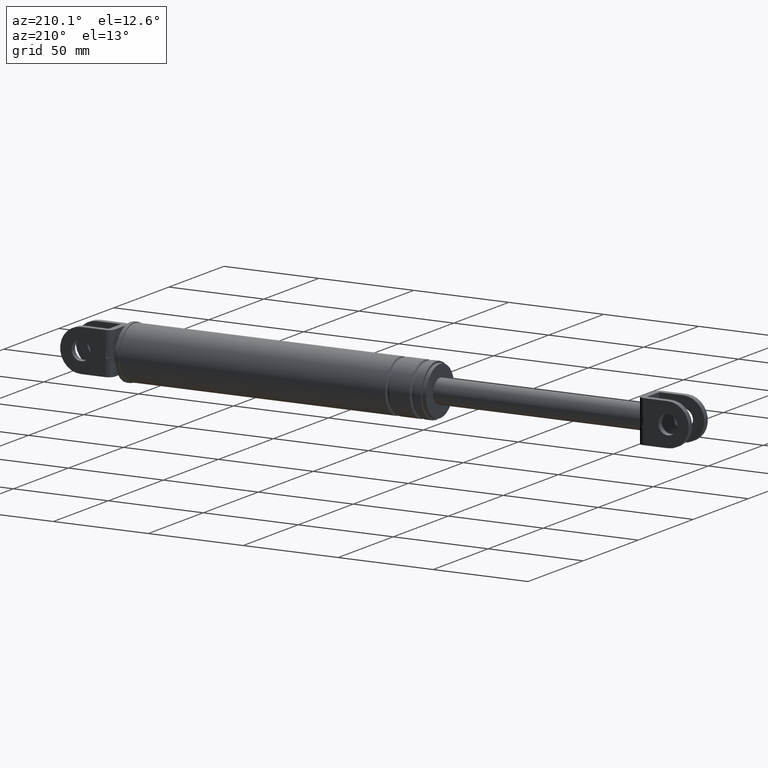
[diagram: clean part render]
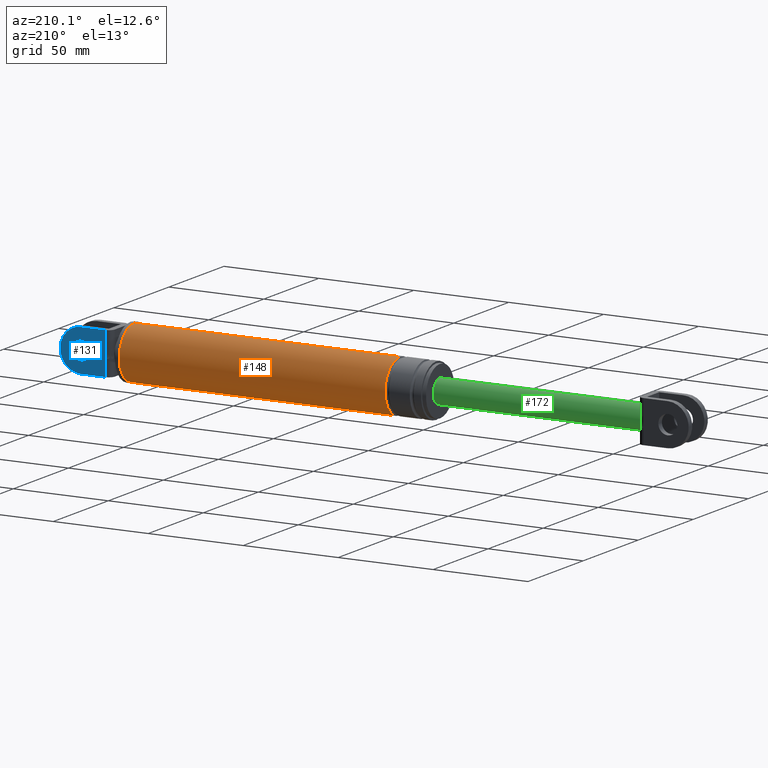
[diagram: same view with three faces highlighted in distinct colors, each labeled with its STEP entity id]
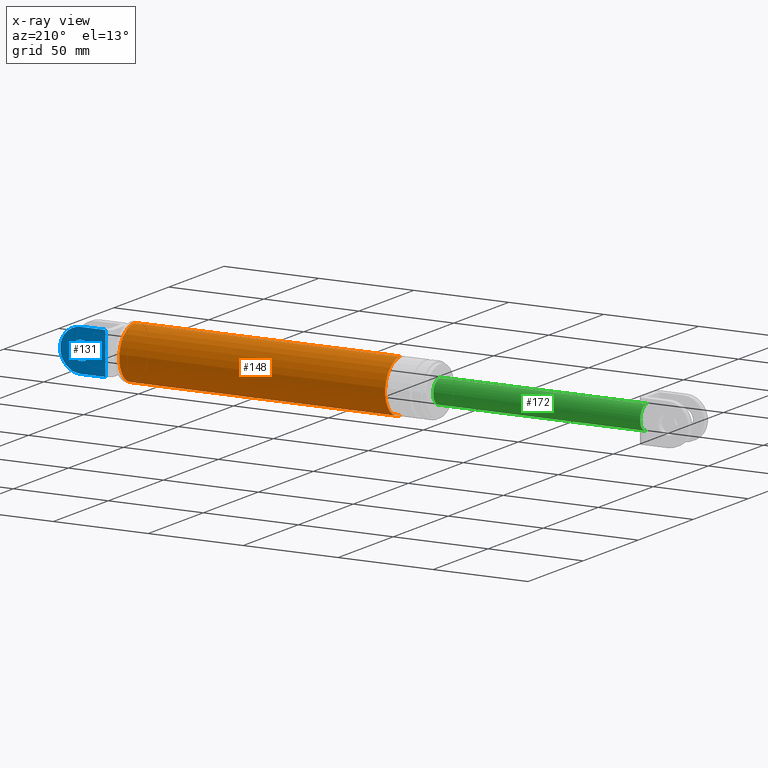
[diagram: x-ray of the same camera — body ghosted, the three highlighted faces saturated]
A machine part, auxiliary view with three faces highlighted in distinct colors.
The next image is the same camera in x-ray (body ghosted, the three faces saturated) — at least one of them is partly hidden behind the body in this view.
Their STEP definitions:

[orange] entity #148 — the highlighted cylindrical surface (edge-blend (fillet) strip) has radius 13.7 mm, axis along (1, 0, 0).
#148=ADVANCED_FACE('',(#543),#542,.T.);
#542=CYLINDRICAL_SURFACE('',#1203,1.37000000000E+001);
#543=FACE_OUTER_BOUND('',#1204,.T.);
#1200=CARTESIAN_POINT('',(0.00000000000E+000,0.00000000000E+000,1.79444335058E+002));
#1201=DIRECTION('',(1.00000000000E+000,-0.00000000000E+000,-0.00000000000E+000));
#1202=DIRECTION('',(-0.00000000000E+000,-0.00000000000E+000,-1.00000000000E+000));
#1203=AXIS2_PLACEMENT_3D('',#1200,#1201,#1202);
#1204=EDGE_LOOP('',(#1568,#1569,#1570,#1571));
#1568=ORIENTED_EDGE('',*,*,#1769,.T.);
#1569=ORIENTED_EDGE('',*,*,#1798,.F.);
#1570=ORIENTED_EDGE('',*,*,#1786,.F.);
#1571=ORIENTED_EDGE('',*,*,#1799,.T.);
#1769=EDGE_CURVE('',#2269,#2268,#2276,.T.);
#1786=EDGE_CURVE('',#2384,#2385,#2386,.T.);
#1798=EDGE_CURVE('',#2385,#2268,#2462,.T.);
#1799=EDGE_CURVE('',#2384,#2269,#2468,.T.);
#2268=VERTEX_POINT('',#3168);
#2269=VERTEX_POINT('',#3169);
#2276=CIRCLE('',#3177,1.37000000000E+001);
#2384=VERTEX_POINT('',#3236);
#2385=VERTEX_POINT('',#3237);
#2386=CIRCLE('',#3241,1.37000000000E+001);
#2462=(BOUNDED_CURVE() B_SPLINE_CURVE(1,(#3286,#3287),.UNSPECIFIED.,.F.,.F.) B_SPLINE_CURVE_WITH_KNOTS((2,2),(6.25000001860E-002,9.37500000071E-001),.UNSPECIFIED.) CURVE() GEOMETRIC_REPRESENTATION_ITEM() RATIONAL_B_SPLINE_CURVE((1.00000000000E+000,1.00000000000E+000)) REPRESENTATION_ITEM('') );
#2468=(BOUNDED_CURVE() B_SPLINE_CURVE(1,(#3288,#3289),.UNSPECIFIED.,.F.,.F.) B_SPLINE_CURVE_WITH_KNOTS((2,2),(6.25000000000E-002,9.37500000000E-001),.UNSPECIFIED.) CURVE() GEOMETRIC_REPRESENTATION_ITEM() RATIONAL_B_SPLINE_CURVE((7.50000000000E-001,7.50000000000E-001)) REPRESENTATION_ITEM('') );
#3168=CARTESIAN_POINT('',(3.52275196154E+002,0.00000000000E+000,1.65744335058E+002));
#3169=CARTESIAN_POINT('',(3.52275196154E+002,0.00000000000E+000,1.93144335058E+002));
#3174=CARTESIAN_POINT('',(3.52275196154E+002,0.00000000000E+000,1.79444335058E+002));
#3175=DIRECTION('',(-1.00000000000E+000,0.00000000000E+000,0.00000000000E+000));
#3176=DIRECTION('',(0.00000000000E+000,-1.22460635382E-016,1.00000000000E+000));
#3177=AXIS2_PLACEMENT_3D('',#3174,#3175,#3176);
#3236=CARTESIAN_POINT('',(2.12275196154E+002,0.00000000000E+000,1.93144335058E+002));
#3237=CARTESIAN_POINT('',(2.12275196154E+002,0.00000000000E+000,1.65744335058E+002));
#3238=CARTESIAN_POINT('',(2.12275196154E+002,0.00000000000E+000,1.79444335058E+002));
#3239=DIRECTION('',(-1.00000000000E+000,0.00000000000E+000,0.00000000000E+000));
#3240=DIRECTION('',(0.00000000000E+000,-1.22460635382E-016,1.00000000000E+000));
#3241=AXIS2_PLACEMENT_3D('',#3238,#3239,#3240);
#3286=CARTESIAN_POINT('',(2.12275196183E+002,0.00000000000E+000,1.65744335058E+002));
#3287=CARTESIAN_POINT('',(3.52275196165E+002,0.00000000000E+000,1.65744335058E+002));
#3288=CARTESIAN_POINT('',(2.12275196154E+002,-5.92118946467E-016,1.93144335058E+002));
#3289=CARTESIAN_POINT('',(3.52275196154E+002,-5.92118946467E-016,1.93144335058E+002));

[blue] entity #131 — the highlighted planar face has unit normal (0, -1, 0).
#131=ADVANCED_FACE('',(#372,#373),#371,.F.);
#371=PLANE('',#981);
#372=FACE_OUTER_BOUND('',#982,.T.);
#373=FACE_BOUND('',#983,.T.);
#978=CARTESIAN_POINT('',(3.60051956430E+002,8.69999700000E+000,1.92644336210E+002));
#979=DIRECTION('',(0.00000000000E+000,-1.00000000000E+000,0.00000000000E+000));
#980=DIRECTION('',(0.00000000000E+000,0.00000000000E+000,-1.00000000000E+000));
#981=AXIS2_PLACEMENT_3D('',#978,#979,#980);
#982=EDGE_LOOP('',(#1492,#1493,#1494,#1495,#1496,#1497));
#983=EDGE_LOOP('',(#1498,#1499));
#1492=ORIENTED_EDGE('',*,*,#1756,.T.);
#1493=ORIENTED_EDGE('',*,*,#1744,.T.);
#1494=ORIENTED_EDGE('',*,*,#1711,.T.);
#1495=ORIENTED_EDGE('',*,*,#1742,.T.);
#1496=ORIENTED_EDGE('',*,*,#1758,.F.);
#1497=ORIENTED_EDGE('',*,*,#1749,.F.);
#1498=ORIENTED_EDGE('',*,*,#1770,.T.);
#1499=ORIENTED_EDGE('',*,*,#1771,.T.);
#1711=EDGE_CURVE('',#1864,#1879,#1886,.T.);
#1742=EDGE_CURVE('',#1879,#2088,#2095,.T.);
#1744=EDGE_CURVE('',#2101,#1864,#2108,.T.);
#1749=EDGE_CURVE('',#2134,#2141,#2142,.T.);
#1756=EDGE_CURVE('',#2134,#2101,#2188,.T.);
#1758=EDGE_CURVE('',#2141,#2088,#2200,.T.);
#1770=EDGE_CURVE('',#2282,#2283,#2284,.T.);
#1771=EDGE_CURVE('',#2283,#2282,#2290,.T.);
#1864=VERTEX_POINT('',#2898);
#1879=VERTEX_POINT('',#2909);
#1886=(BOUNDED_CURVE() B_SPLINE_CURVE(3,(#2914,#2915,#2916,#2917,#2918,#2919,#2920,#2921,#2922,#2923),.UNSPECIFIED.,.F.,.F.) B_SPLINE_CURVE_WITH_KNOTS((4,2,2,2,4),(0.00000000000E+000,1.19940700729E-003,2.39881401459E-003,3.59822102188E-003,4.79762802917E-003),.UNSPECIFIED.) CURVE() GEOMETRIC_REPRESENTATION_ITEM() RATIONAL_B_SPLINE_CURVE((1.00000000000E+000,1.00000000000E+000,1.00000000000E+000,1.00000000000E+000,1.00000000000E+000,1.00000000000E+000,1.00000000000E+000,1.00000000000E+000,1.00000000000E+000,1.00000000000E+000)) REPRESENTATION_ITEM('') );
#2088=VERTEX_POINT('',#3055);
#2095=LINE('',#3060,#3061);
#2101=VERTEX_POINT('',#3063);
#2108=LINE('',#3068,#3069);
#2134=VERTEX_POINT('',#3083);
#2141=VERTEX_POINT('',#3087);
#2142=CIRCLE('',#3091,1.10000000000E+001);
#2188=LINE('',#3116,#3117);
#2200=LINE('',#3122,#3123);
#2282=VERTEX_POINT('',#3178);
#2283=VERTEX_POINT('',#3179);
#2284=CIRCLE('',#3183,5.00000000000E+000);
#2290=CIRCLE('',#3187,5.00000000000E+000);
#2898=CARTESIAN_POINT('',(3.62475196154E+002,8.69999700000E+000,1.77046412416E+002));
#2909=CARTESIAN_POINT('',(3.62475196154E+002,8.69999700000E+000,1.81842257701E+002));
#2914=CARTESIAN_POINT('',(3.62475196154E+002,8.69999700000E+000,1.77046412416E+002));
#2915=CARTESIAN_POINT('',(3.62475196154E+002,8.69999700000E+000,1.77446288544E+002));
#2916=CARTESIAN_POINT('',(3.62463561458E+002,8.69999700000E+000,1.77845941123E+002));
#2917=CARTESIAN_POINT('',(3.62443697986E+002,8.69999700000E+000,1.78645311722E+002));
#2918=CARTESIAN_POINT('',(3.62435887314E+002,8.69999700000E+000,1.79045069929E+002));
#2919=CARTESIAN_POINT('',(3.62435896301E+002,8.69999700000E+000,1.79844382009E+002));
#2920=CARTESIAN_POINT('',(3.62443711882E+002,8.69999700000E+000,1.80243957604E+002));
#2921=CARTESIAN_POINT('',(3.62463570809E+002,8.69999700000E+000,1.81043065255E+002));
#2922=CARTESIAN_POINT('',(3.62475196154E+002,8.69999700000E+000,1.81442601615E+002));
#2923=CARTESIAN_POINT('',(3.62475196154E+002,8.69999700000E+000,1.81842257701E+002));
#3055=CARTESIAN_POINT('',(3.62475196154E+002,8.69999700000E+000,1.90444335058E+002));
#3060=CARTESIAN_POINT('',(3.62475196154E+002,8.69999700000E+000,1.81842257701E+002));
#3061=VECTOR('',#3062,8.60207735738E+000);
#3062=DIRECTION('',(0.00000000000E+000,0.00000000000E+000,1.00000000000E+000));
#3063=CARTESIAN_POINT('',(3.62475196154E+002,8.69999700000E+000,1.68444335058E+002));
#3068=CARTESIAN_POINT('',(3.62475196154E+002,8.69999700000E+000,1.68444335058E+002));
#3069=VECTOR('',#3070,8.60207735738E+000);
#3070=DIRECTION('',(0.00000000000E+000,0.00000000000E+000,1.00000000000E+000));
#3083=CARTESIAN_POINT('',(3.75275195194E+002,8.69999700000E+000,1.68444335058E+002));
#3087=CARTESIAN_POINT('',(3.75275195194E+002,8.69999700000E+000,1.90444335058E+002));
#3088=CARTESIAN_POINT('',(3.75275196154E+002,8.69999700000E+000,1.79444335058E+002));
#3089=DIRECTION('',(-0.00000000000E+000,-1.00000000000E+000,0.00000000000E+000));
#3090=DIRECTION('',(-8.72664517201E-008,0.00000000000E+000,1.00000000000E+000));
#3091=AXIS2_PLACEMENT_3D('',#3088,#3089,#3090);
#3116=CARTESIAN_POINT('',(3.75275195194E+002,8.69999700000E+000,1.68444335058E+002));
#3117=VECTOR('',#3118,1.27999990401E+001);
#3118=DIRECTION('',(-1.00000000000E+000,0.00000000000E+000,0.00000000000E+000));
#3122=CARTESIAN_POINT('',(3.75275195194E+002,8.69999700000E+000,1.90444335058E+002));
#3123=VECTOR('',#3124,1.27999990401E+001);
#3124=DIRECTION('',(-1.00000000000E+000,0.00000000000E+000,0.00000000000E+000));
#3178=CARTESIAN_POINT('',(3.75275196154E+002,8.69999700000E+000,1.84444335058E+002));
#3179=CARTESIAN_POINT('',(3.75275196154E+002,8.69999700000E+000,1.74444335058E+002));
#3180=CARTESIAN_POINT('',(3.75275196154E+002,8.69999700000E+000,1.79444335058E+002));
#3181=DIRECTION('',(-0.00000000000E+000,-1.00000000000E+000,0.00000000000E+000));
#3182=DIRECTION('',(-1.22460635382E-016,0.00000000000E+000,1.00000000000E+000));
#3183=AXIS2_PLACEMENT_3D('',#3180,#3181,#3182);
#3184=CARTESIAN_POINT('',(3.75275196154E+002,8.69999700000E+000,1.79444335058E+002));
#3185=DIRECTION('',(-0.00000000000E+000,-1.00000000000E+000,0.00000000000E+000));
#3186=DIRECTION('',(-1.22460635382E-016,0.00000000000E+000,1.00000000000E+000));
#3187=AXIS2_PLACEMENT_3D('',#3184,#3185,#3186);

[green] entity #172 — the highlighted cylindrical surface (edge-blend (fillet) strip) has radius 6.25 mm, axis along (1, 0, 0).
#172=ADVANCED_FACE('',(#787),#786,.T.);
#786=CYLINDRICAL_SURFACE('',#1379,6.25000000000E+000);
#787=FACE_OUTER_BOUND('',#1380,.T.);
#1376=CARTESIAN_POINT('',(0.00000000000E+000,0.00000000000E+000,1.79444335058E+002));
#1377=DIRECTION('',(1.00000000000E+000,-0.00000000000E+000,-0.00000000000E+000));
#1378=DIRECTION('',(-0.00000000000E+000,-0.00000000000E+000,-1.00000000000E+000));
#1379=AXIS2_PLACEMENT_3D('',#1376,#1377,#1378);
#1380=EDGE_LOOP('',(#1688,#1689,#1690,#1691,#1692,#1693));
#1688=ORIENTED_EDGE('',*,*,#1853,.T.);
#1689=ORIENTED_EDGE('',*,*,#1860,.F.);
#1690=ORIENTED_EDGE('',*,*,#1841,.F.);
#1691=ORIENTED_EDGE('',*,*,#1823,.F.);
#1692=ORIENTED_EDGE('',*,*,#1833,.F.);
#1693=ORIENTED_EDGE('',*,*,#1861,.T.);
#1823=EDGE_CURVE('',#2625,#2618,#2632,.T.);
#1833=EDGE_CURVE('',#2691,#2625,#2698,.T.);
#1841=EDGE_CURVE('',#2618,#2752,#2753,.T.);
#1853=EDGE_CURVE('',#2823,#2822,#2830,.T.);
#1860=EDGE_CURVE('',#2752,#2822,#2874,.T.);
#1861=EDGE_CURVE('',#2691,#2823,#2880,.T.);
#2618=VERTEX_POINT('',#3392);
#2625=VERTEX_POINT('',#3397);
#2632=CIRCLE('',#3405,6.25000000000E+000);
#2691=VERTEX_POINT('',#3438);
#2698=CIRCLE('',#3446,6.25000000000E+000);
#2752=VERTEX_POINT('',#3477);
#2753=CIRCLE('',#3481,6.25000000000E+000);
#2822=VERTEX_POINT('',#3517);
#2823=VERTEX_POINT('',#3518);
#2830=CIRCLE('',#3526,6.25000000000E+000);
#2874=(BOUNDED_CURVE() B_SPLINE_CURVE(1,(#3548,#3549),.UNSPECIFIED.,.F.,.F.) B_SPLINE_CURVE_WITH_KNOTS((2,2),(7.75193799282E-002,9.22480620316E-001),.UNSPECIFIED.) CURVE() GEOMETRIC_REPRESENTATION_ITEM() RATIONAL_B_SPLINE_CURVE((1.00000000000E+000,1.00000000000E+000)) REPRESENTATION_ITEM('') );
#2880=(BOUNDED_CURVE() B_SPLINE_CURVE(1,(#3550,#3551),.UNSPECIFIED.,.F.,.F.) B_SPLINE_CURVE_WITH_KNOTS((2,2),(7.75193798450E-002,9.22480620155E-001),.UNSPECIFIED.) CURVE() GEOMETRIC_REPRESENTATION_ITEM() RATIONAL_B_SPLINE_CURVE((7.50000000000E-001,7.50000000000E-001)) REPRESENTATION_ITEM('') );
#3392=CARTESIAN_POINT('',(8.22751961537E+001,5.49999700000E+000,1.76475743978E+002));
#3397=CARTESIAN_POINT('',(8.22751961537E+001,5.49999700000E+000,1.82412926138E+002));
#3402=CARTESIAN_POINT('',(8.22751961537E+001,0.00000000000E+000,1.79444335058E+002));
#3403=DIRECTION('',(-1.00000000000E+000,0.00000000000E+000,0.00000000000E+000));
#3404=DIRECTION('',(-0.00000000000E+000,-0.00000000000E+000,-1.00000000000E+000));
#3405=AXIS2_PLACEMENT_3D('',#3402,#3403,#3404);
#3438=CARTESIAN_POINT('',(8.22751961537E+001,7.89135251068E-007,1.85694335058E+002));
#3443=CARTESIAN_POINT('',(8.22751961537E+001,0.00000000000E+000,1.79444335058E+002));
#3444=DIRECTION('',(-1.00000000000E+000,0.00000000000E+000,0.00000000000E+000));
#3445=DIRECTION('',(-0.00000000000E+000,-0.00000000000E+000,-1.00000000000E+000));
#3446=AXIS2_PLACEMENT_3D('',#3443,#3444,#3445);
#3477=CARTESIAN_POINT('',(8.22751961537E+001,-4.27274026132E-012,1.73194335058E+002));
#3478=CARTESIAN_POINT('',(8.22751961537E+001,0.00000000000E+000,1.79444335058E+002));
#3479=DIRECTION('',(-1.00000000000E+000,0.00000000000E+000,0.00000000000E+000));
#3480=DIRECTION('',(-0.00000000000E+000,8.79999520000E-001,-4.74974572793E-001));
#3481=AXIS2_PLACEMENT_3D('',#3478,#3479,#3480);
#3517=CARTESIAN_POINT('',(1.91275196154E+002,0.00000000000E+000,1.73194335058E+002));
#3518=CARTESIAN_POINT('',(1.91275196154E+002,0.00000000000E+000,1.85694335058E+002));
#3523=CARTESIAN_POINT('',(1.91275196154E+002,0.00000000000E+000,1.79444335058E+002));
#3524=DIRECTION('',(-1.00000000000E+000,0.00000000000E+000,0.00000000000E+000));
#3525=DIRECTION('',(0.00000000000E+000,-1.22460635382E-016,1.00000000000E+000));
#3526=AXIS2_PLACEMENT_3D('',#3523,#3524,#3525);
#3548=CARTESIAN_POINT('',(8.22751961644E+001,0.00000000000E+000,1.73194335058E+002));
#3549=CARTESIAN_POINT('',(1.91275196174E+002,0.00000000000E+000,1.73194335058E+002));
#3550=CARTESIAN_POINT('',(8.22751961537E+001,0.00000000000E+000,1.85694335058E+002));
#3551=CARTESIAN_POINT('',(1.91275196154E+002,0.00000000000E+000,1.85694335058E+002));